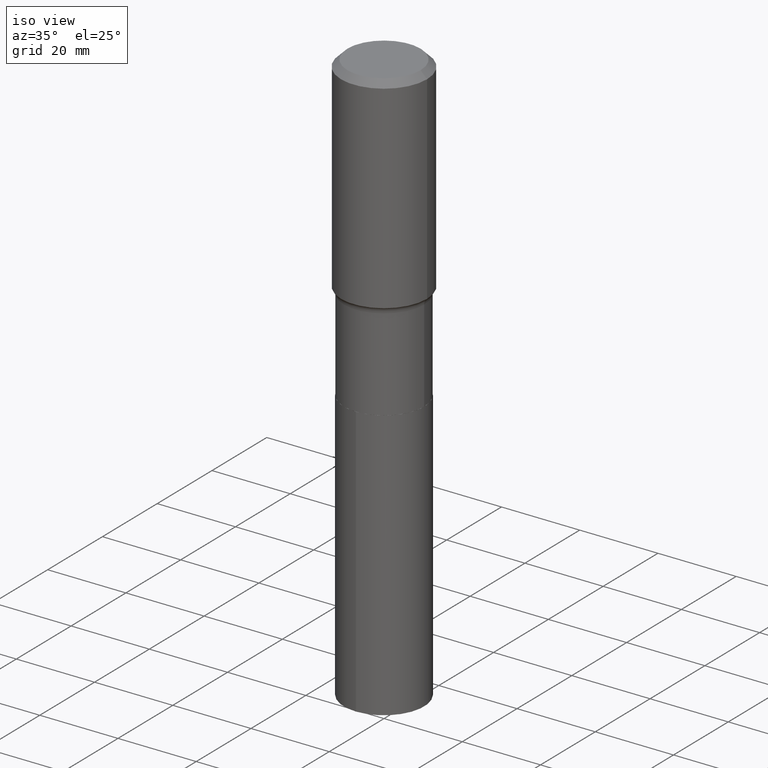
[diagram: clean part render]
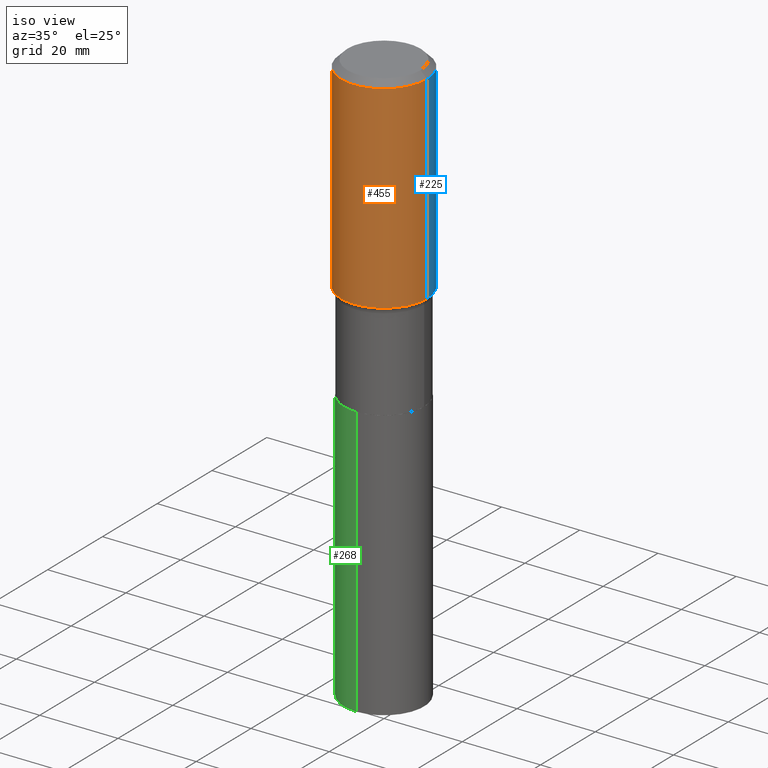
[diagram: same view with three faces highlighted in distinct colors, each labeled with its STEP entity id]
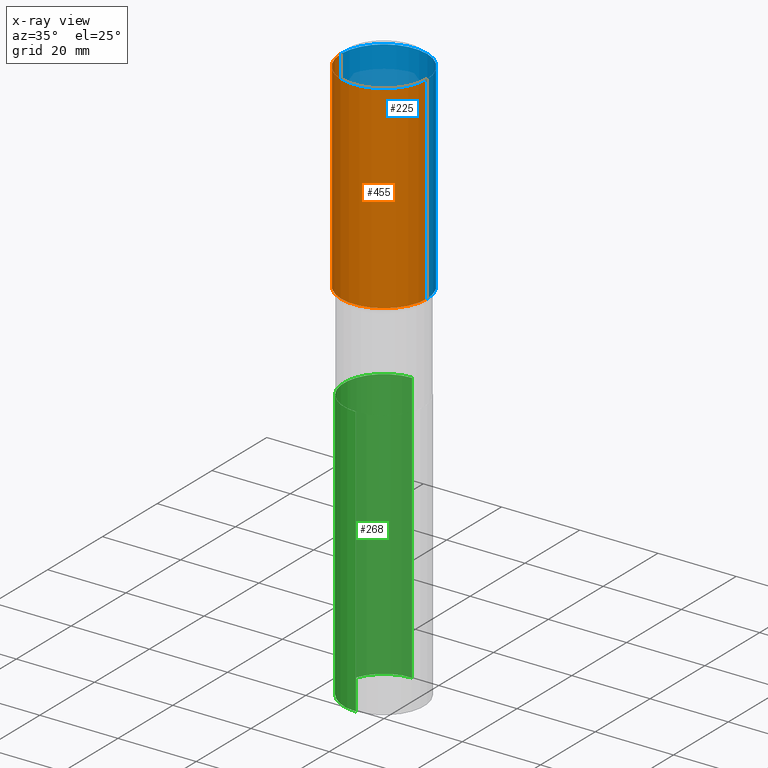
[diagram: x-ray of the same camera — body ghosted, the three highlighted faces saturated]
A machine part, iso view with three faces highlighted in distinct colors.
The next image is the same camera in x-ray (body ghosted, the three faces saturated) — at least one of them is partly hidden behind the body in this view.
Their STEP definitions:

[orange] entity #455 — the highlighted cylindrical surface (partial cylindrical patch) has radius 10.9995 mm, axis along (-0, 0, 1).
#4 = CARTESIAN_POINT ( 'NONE',  ( 0.4330500000000000460, -3.023971987572038133E-15, 2.111628352758430314E-29 ) ) ;
#7 = AXIS2_PLACEMENT_3D ( 'NONE', #59, #179, #167 ) ;
#13 = CYLINDRICAL_SURFACE ( 'NONE', #7, 0.4330500000000000460 ) ;
#30 = AXIS2_PLACEMENT_3D ( 'NONE', #305, #309, #461 ) ;
#43 = DIRECTION ( 'NONE',  ( -2.445468806185136877E-29, 3.491481338843145188E-15, 1.000000000000000000 ) ) ;
#50 = CARTESIAN_POINT ( 'NONE',  ( -0.4330499999999999905, -6.359571781029132743E-16, -0.06495750000000043156 ) ) ;
#59 = CARTESIAN_POINT ( 'NONE',  ( 0.000000000000000000, 0.000000000000000000, 0.000000000000000000 ) ) ;
#81 = ORIENTED_EDGE ( 'NONE', *, *, #311, .F. ) ;
#94 = CARTESIAN_POINT ( 'NONE',  ( -0.4330500000000000460, -4.122121774347035070E-15, -2.061911948795201344 ) ) ;
#133 = DIRECTION ( 'NONE',  ( -2.445468806185136877E-29, 3.491481338843145188E-15, 1.000000000000000000 ) ) ;
#164 = CARTESIAN_POINT ( 'NONE',  ( -0.4330500000000000460, 3.077005317209114182E-15, -2.130144840834887405E-29 ) ) ;
#167 = DIRECTION ( 'NONE',  ( 1.000000000000000000, -6.982962677686266711E-15, 4.876176775795935793E-29 ) ) ;
#175 = CARTESIAN_POINT ( 'NONE',  ( 0.4330500000000000460, -1.022309907912818896E-14, -2.061911948795201344 ) ) ;
#179 = DIRECTION ( 'NONE',  ( -2.445468806185136597E-29, 3.491481338843145583E-15, 1.000000000000000000 ) ) ;
#193 = EDGE_CURVE ( 'NONE', #382, #456, #487, .T. ) ;
#231 = EDGE_LOOP ( 'NONE', ( #233, #400, #252, #81 ) ) ;
#233 = ORIENTED_EDGE ( 'NONE', *, *, #384, .F. ) ;
#252 = ORIENTED_EDGE ( 'NONE', *, *, #284, .T. ) ;
#269 = VECTOR ( 'NONE', #133, 39.37007874015748143 ) ;
#277 = AXIS2_PLACEMENT_3D ( 'NONE', #423, #352, #301 ) ;
#284 = EDGE_CURVE ( 'NONE', #456, #351, #417, .T. ) ;
#289 = CARTESIAN_POINT ( 'NONE',  ( 0.4330499999999999905, -3.250769886639943005E-15, -0.06495750000000043156 ) ) ;
#301 = DIRECTION ( 'NONE',  ( 1.000000000000000000, -6.982962677686268288E-15, 0.000000000000000000 ) ) ;
#305 = CARTESIAN_POINT ( 'NONE',  ( 1.588515399777720472E-30, -2.267978990679051181E-16, -0.06495750000000043156 ) ) ;
#309 = DIRECTION ( 'NONE',  ( -2.445468806185136597E-29, 3.491481338843145583E-15, 1.000000000000000000 ) ) ;
#311 = EDGE_CURVE ( 'NONE', #392, #351, #381, .T. ) ;
#351 = VERTEX_POINT ( 'NONE', #289 ) ;
#352 = DIRECTION ( 'NONE',  ( -2.445468806185136597E-29, 3.491481338843145583E-15, 1.000000000000000000 ) ) ;
#381 = CIRCLE ( 'NONE', #30, 0.4330499999999999905 ) ;
#382 = VERTEX_POINT ( 'NONE', #94 ) ;
#384 = EDGE_CURVE ( 'NONE', #382, #392, #438, .T. ) ;
#392 = VERTEX_POINT ( 'NONE', #50 ) ;
#400 = ORIENTED_EDGE ( 'NONE', *, *, #193, .T. ) ;
#408 = FACE_OUTER_BOUND ( 'NONE', #231, .T. ) ;
#417 = LINE ( 'NONE', #4, #430 ) ;
#423 = CARTESIAN_POINT ( 'NONE',  ( 5.042341351879069705E-29, -7.199127091556149252E-15, -2.061911948795201344 ) ) ;
#430 = VECTOR ( 'NONE', #43, 39.37007874015748143 ) ;
#438 = LINE ( 'NONE', #164, #269 ) ;
#455 = ADVANCED_FACE ( 'NONE', ( #408 ), #13, .T. ) ;
#456 = VERTEX_POINT ( 'NONE', #175 ) ;
#461 = DIRECTION ( 'NONE',  ( 1.000000000000000000, -6.982962677686266711E-15, 0.000000000000000000 ) ) ;
#487 = CIRCLE ( 'NONE', #277, 0.4330500000000001570 ) ;

[blue] entity #225 — the highlighted cylindrical surface (partial cylindrical patch) has radius 10.9995 mm, axis along (-0, 0, 1).
#4 = CARTESIAN_POINT ( 'NONE',  ( 0.4330500000000000460, -3.023971987572038133E-15, 2.111628352758430314E-29 ) ) ;
#14 = DIRECTION ( 'NONE',  ( -2.445468806185136597E-29, 3.491481338843145583E-15, 1.000000000000000000 ) ) ;
#26 = AXIS2_PLACEMENT_3D ( 'NONE', #49, #14, #443 ) ;
#33 = FACE_OUTER_BOUND ( 'NONE', #446, .T. ) ;
#43 = DIRECTION ( 'NONE',  ( -2.445468806185136877E-29, 3.491481338843145188E-15, 1.000000000000000000 ) ) ;
#49 = CARTESIAN_POINT ( 'NONE',  ( 5.042341351879069705E-29, -7.199127091556149252E-15, -2.061911948795201344 ) ) ;
#50 = CARTESIAN_POINT ( 'NONE',  ( -0.4330499999999999905, -6.359571781029132743E-16, -0.06495750000000043156 ) ) ;
#63 = AXIS2_PLACEMENT_3D ( 'NONE', #380, #344, #149 ) ;
#75 = CYLINDRICAL_SURFACE ( 'NONE', #63, 0.4330500000000000460 ) ;
#94 = CARTESIAN_POINT ( 'NONE',  ( -0.4330500000000000460, -4.122121774347035070E-15, -2.061911948795201344 ) ) ;
#128 = EDGE_CURVE ( 'NONE', #456, #382, #453, .T. ) ;
#133 = DIRECTION ( 'NONE',  ( -2.445468806185136877E-29, 3.491481338843145188E-15, 1.000000000000000000 ) ) ;
#149 = DIRECTION ( 'NONE',  ( 1.000000000000000000, -6.982962677686266711E-15, 4.876176775795935793E-29 ) ) ;
#164 = CARTESIAN_POINT ( 'NONE',  ( -0.4330500000000000460, 3.077005317209114182E-15, -2.130144840834887405E-29 ) ) ;
#175 = CARTESIAN_POINT ( 'NONE',  ( 0.4330500000000000460, -1.022309907912818896E-14, -2.061911948795201344 ) ) ;
#185 = CARTESIAN_POINT ( 'NONE',  ( 1.588515399777720472E-30, -2.267978990679051181E-16, -0.06495750000000043156 ) ) ;
#223 = DIRECTION ( 'NONE',  ( -2.445468806185136597E-29, 3.491481338843145583E-15, 1.000000000000000000 ) ) ;
#225 = ADVANCED_FACE ( 'NONE', ( #33 ), #75, .T. ) ;
#238 = ORIENTED_EDGE ( 'NONE', *, *, #384, .T. ) ;
#247 = CIRCLE ( 'NONE', #376, 0.4330499999999999905 ) ;
#269 = VECTOR ( 'NONE', #133, 39.37007874015748143 ) ;
#272 = ORIENTED_EDGE ( 'NONE', *, *, #485, .F. ) ;
#284 = EDGE_CURVE ( 'NONE', #456, #351, #417, .T. ) ;
#289 = CARTESIAN_POINT ( 'NONE',  ( 0.4330499999999999905, -3.250769886639943005E-15, -0.06495750000000043156 ) ) ;
#294 = ORIENTED_EDGE ( 'NONE', *, *, #284, .F. ) ;
#340 = DIRECTION ( 'NONE',  ( 1.000000000000000000, -6.982962677686266711E-15, 0.000000000000000000 ) ) ;
#344 = DIRECTION ( 'NONE',  ( -2.445468806185136597E-29, 3.491481338843145583E-15, 1.000000000000000000 ) ) ;
#351 = VERTEX_POINT ( 'NONE', #289 ) ;
#376 = AXIS2_PLACEMENT_3D ( 'NONE', #185, #223, #340 ) ;
#380 = CARTESIAN_POINT ( 'NONE',  ( 0.000000000000000000, 0.000000000000000000, 0.000000000000000000 ) ) ;
#382 = VERTEX_POINT ( 'NONE', #94 ) ;
#384 = EDGE_CURVE ( 'NONE', #382, #392, #438, .T. ) ;
#392 = VERTEX_POINT ( 'NONE', #50 ) ;
#417 = LINE ( 'NONE', #4, #430 ) ;
#430 = VECTOR ( 'NONE', #43, 39.37007874015748143 ) ;
#438 = LINE ( 'NONE', #164, #269 ) ;
#443 = DIRECTION ( 'NONE',  ( 1.000000000000000000, -6.982962677686268288E-15, 0.000000000000000000 ) ) ;
#446 = EDGE_LOOP ( 'NONE', ( #489, #238, #272, #294 ) ) ;
#453 = CIRCLE ( 'NONE', #26, 0.4330500000000001570 ) ;
#456 = VERTEX_POINT ( 'NONE', #175 ) ;
#485 = EDGE_CURVE ( 'NONE', #351, #392, #247, .T. ) ;
#489 = ORIENTED_EDGE ( 'NONE', *, *, #128, .T. ) ;

[green] entity #268 — the highlighted cylindrical surface (partial cylindrical patch) has radius 10.2502 mm, axis along (-0, 0, 1).
#2 = CYLINDRICAL_SURFACE ( 'NONE', #410, 0.4035499999999999088 ) ;
#16 = VECTOR ( 'NONE', #362, 39.37007874015748143 ) ;
#42 = ORIENTED_EDGE ( 'NONE', *, *, #76, .T. ) ;
#65 = VECTOR ( 'NONE', #320, 39.37007874015748143 ) ;
#67 = VERTEX_POINT ( 'NONE', #365 ) ;
#76 = EDGE_CURVE ( 'NONE', #67, #377, #137, .T. ) ;
#105 = AXIS2_PLACEMENT_3D ( 'NONE', #205, #169, #434 ) ;
#109 = EDGE_LOOP ( 'NONE', ( #354, #42, #322, #135 ) ) ;
#117 = EDGE_CURVE ( 'NONE', #67, #120, #427, .T. ) ;
#120 = VERTEX_POINT ( 'NONE', #468 ) ;
#125 = DIRECTION ( 'NONE',  ( -6.982962677686266711E-15, -1.000000000000000000, 4.061724188325010945E-15 ) ) ;
#135 = ORIENTED_EDGE ( 'NONE', *, *, #343, .F. ) ;
#137 = CIRCLE ( 'NONE', #105, 0.4035499999999999088 ) ;
#169 = DIRECTION ( 'NONE',  ( -2.437616151312390416E-29, 3.502726787566277144E-15, 1.000000000000000000 ) ) ;
#205 = CARTESIAN_POINT ( 'NONE',  ( 1.410914278417686230E-28, -2.020535808569685938E-14, -5.778261173747885948 ) ) ;
#239 = DIRECTION ( 'NONE',  ( -2.437616151312390416E-29, 3.502726787566277144E-15, 1.000000000000000000 ) ) ;
#241 = VERTEX_POINT ( 'NONE', #378 ) ;
#250 = CARTESIAN_POINT ( 'NONE',  ( -2.817974588580150434E-15, -0.4035500000000201148, -5.778261173747885060 ) ) ;
#268 = ADVANCED_FACE ( 'NONE', ( #464 ), #2, .T. ) ;
#283 = CARTESIAN_POINT ( 'NONE',  ( 7.461614421432089568E-29, -1.065320786107820621E-14, -3.051200000000000134 ) ) ;
#319 = CARTESIAN_POINT ( 'NONE',  ( 2.867395210159957805E-15, 0.4035499999999892506, -3.051200000000001467 ) ) ;
#320 = DIRECTION ( 'NONE',  ( -2.437616151312390416E-29, 3.502726787566277144E-15, 1.000000000000000000 ) ) ;
#322 = ORIENTED_EDGE ( 'NONE', *, *, #339, .T. ) ;
#323 = DIRECTION ( 'NONE',  ( -2.437616151312390416E-29, 3.502726787566277144E-15, 1.000000000000000000 ) ) ;
#339 = EDGE_CURVE ( 'NONE', #377, #241, #467, .T. ) ;
#343 = EDGE_CURVE ( 'NONE', #120, #241, #483, .T. ) ;
#354 = ORIENTED_EDGE ( 'NONE', *, *, #117, .F. ) ;
#362 = DIRECTION ( 'NONE',  ( -2.437616151312390416E-29, 3.502726787566277144E-15, 1.000000000000000000 ) ) ;
#365 = CARTESIAN_POINT ( 'NONE',  ( 2.867395210160024464E-15, 0.4035499999999797027, -5.778261173747886836 ) ) ;
#377 = VERTEX_POINT ( 'NONE', #250 ) ;
#378 = CARTESIAN_POINT ( 'NONE',  ( -2.817974588580217488E-15, -0.4035500000000105669, -3.051199999999998358 ) ) ;
#410 = AXIS2_PLACEMENT_3D ( 'NONE', #283, #239, #459 ) ;
#413 = AXIS2_PLACEMENT_3D ( 'NONE', #469, #323, #125 ) ;
#427 = LINE ( 'NONE', #319, #16 ) ;
#434 = DIRECTION ( 'NONE',  ( -6.982962677686266711E-15, -1.000000000000000000, 2.707816125550007428E-15 ) ) ;
#459 = DIRECTION ( 'NONE',  ( -6.982962677686266711E-15, -1.000000000000000000, 4.061724188325010945E-15 ) ) ;
#464 = FACE_OUTER_BOUND ( 'NONE', #109, .T. ) ;
#467 = LINE ( 'NONE', #481, #65 ) ;
#468 = CARTESIAN_POINT ( 'NONE',  ( 2.867395210160024858E-15, 0.4035499999999892506, -3.051200000000001467 ) ) ;
#469 = CARTESIAN_POINT ( 'NONE',  ( 7.461614421432089568E-29, -1.065320786107820621E-14, -3.051200000000000134 ) ) ;
#481 = CARTESIAN_POINT ( 'NONE',  ( -2.817974588580217488E-15, -0.4035500000000105669, -3.051199999999998358 ) ) ;
#483 = CIRCLE ( 'NONE', #413, 0.4035499999999999088 ) ;